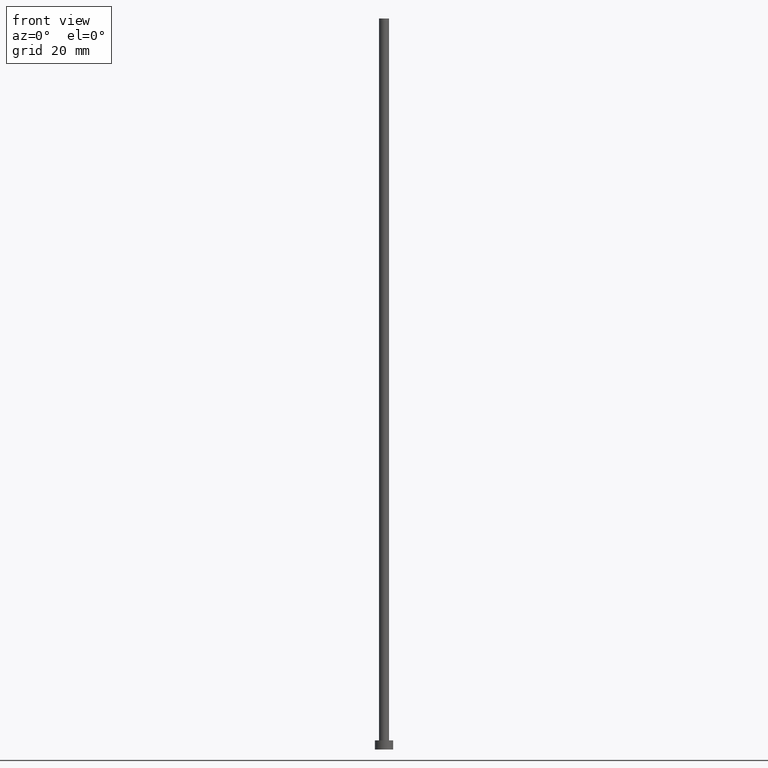
[diagram: clean part render]
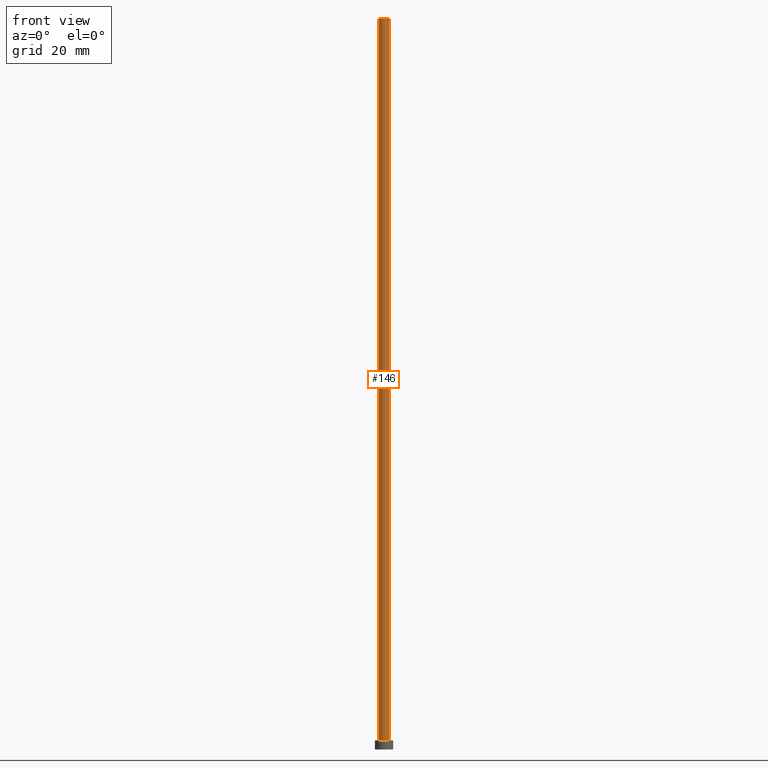
[diagram: same view with one face highlighted and labeled with its STEP entity id]
A machine part, front view. The second image highlights one B-rep face of the part: STEP entity #146.
In plain terms, the highlighted cylindrical surface (edge-blend (fillet) strip) has radius 1.1 mm, axis along (-0, -0, -1).
Its self-contained STEP definition (entity closure, byte-faithful):
#2 = LINE ( 'NONE', #237, #27 ) ;
#4 = CARTESIAN_POINT ( 'NONE',  ( -1.100000000000000089, 0.000000000000000000, 2.000000000000000000 ) ) ;
#8 = VERTEX_POINT ( 'NONE', #93 ) ;
#19 = FACE_OUTER_BOUND ( 'NONE', #250, .T. ) ;
#21 = DIRECTION ( 'NONE',  ( -1.000000000000000000, 0.000000000000000000, 0.000000000000000000 ) ) ;
#23 = DIRECTION ( 'NONE',  ( 0.000000000000000000, 0.000000000000000000, 1.000000000000000000 ) ) ;
#24 = DIRECTION ( 'NONE',  ( 1.000000000000000000, 0.000000000000000000, 0.000000000000000000 ) ) ;
#27 = VECTOR ( 'NONE', #112, 1000.000000000000000 ) ;
#44 = CARTESIAN_POINT ( 'NONE',  ( 0.000000000000000000, 0.000000000000000000, 2.000000000000000000 ) ) ;
#45 = DIRECTION ( 'NONE',  ( 1.000000000000000000, 0.000000000000000000, 0.000000000000000000 ) ) ;
#46 = CARTESIAN_POINT ( 'NONE',  ( 1.100000000000000089, 1.347111479062088503E-16, 2.000000000000000000 ) ) ;
#72 = AXIS2_PLACEMENT_3D ( 'NONE', #44, #99, #45 ) ;
#92 = CARTESIAN_POINT ( 'NONE',  ( 0.000000000000000000, 0.000000000000000000, 160.0000000000000000 ) ) ;
#93 = CARTESIAN_POINT ( 'NONE',  ( -1.100000000000000089, 0.000000000000000000, 160.0000000000000000 ) ) ;
#99 = DIRECTION ( 'NONE',  ( 0.000000000000000000, 0.000000000000000000, 1.000000000000000000 ) ) ;
#102 = EDGE_CURVE ( 'NONE', #104, #247, #213, .T. ) ;
#104 = VERTEX_POINT ( 'NONE', #111 ) ;
#111 = CARTESIAN_POINT ( 'NONE',  ( 1.100000000000000089, 1.347111479062088503E-16, 160.0000000000000000 ) ) ;
#112 = DIRECTION ( 'NONE',  ( -0.000000000000000000, -0.000000000000000000, -1.000000000000000000 ) ) ;
#116 = DIRECTION ( 'NONE',  ( -0.000000000000000000, -0.000000000000000000, -1.000000000000000000 ) ) ;
#128 = VECTOR ( 'NONE', #129, 1000.000000000000000 ) ;
#129 = DIRECTION ( 'NONE',  ( -0.000000000000000000, -0.000000000000000000, -1.000000000000000000 ) ) ;
#137 = ORIENTED_EDGE ( 'NONE', *, *, #220, .T. ) ;
#140 = AXIS2_PLACEMENT_3D ( 'NONE', #194, #23, #24 ) ;
#146 = ADVANCED_FACE ( 'NONE', ( #19 ), #211, .T. ) ;
#152 = EDGE_CURVE ( 'NONE', #8, #184, #2, .T. ) ;
#157 = AXIS2_PLACEMENT_3D ( 'NONE', #92, #116, #21 ) ;
#180 = EDGE_CURVE ( 'NONE', #8, #104, #235, .T. ) ;
#184 = VERTEX_POINT ( 'NONE', #4 ) ;
#194 = CARTESIAN_POINT ( 'NONE',  ( 0.000000000000000000, 0.000000000000000000, 160.0000000000000000 ) ) ;
#201 = CIRCLE ( 'NONE', #72, 1.100000000000000089 ) ;
#205 = ORIENTED_EDGE ( 'NONE', *, *, #102, .F. ) ;
#211 = CYLINDRICAL_SURFACE ( 'NONE', #157, 1.100000000000000089 ) ;
#213 = LINE ( 'NONE', #214, #128 ) ;
#214 = CARTESIAN_POINT ( 'NONE',  ( 1.100000000000000089, 1.347111479062088503E-16, 160.0000000000000000 ) ) ;
#220 = EDGE_CURVE ( 'NONE', #184, #247, #201, .T. ) ;
#229 = ORIENTED_EDGE ( 'NONE', *, *, #152, .T. ) ;
#234 = ORIENTED_EDGE ( 'NONE', *, *, #180, .F. ) ;
#235 = CIRCLE ( 'NONE', #140, 1.100000000000000089 ) ;
#237 = CARTESIAN_POINT ( 'NONE',  ( -1.100000000000000089, 0.000000000000000000, 160.0000000000000000 ) ) ;
#247 = VERTEX_POINT ( 'NONE', #46 ) ;
#250 = EDGE_LOOP ( 'NONE', ( #205, #234, #229, #137 ) ) ;